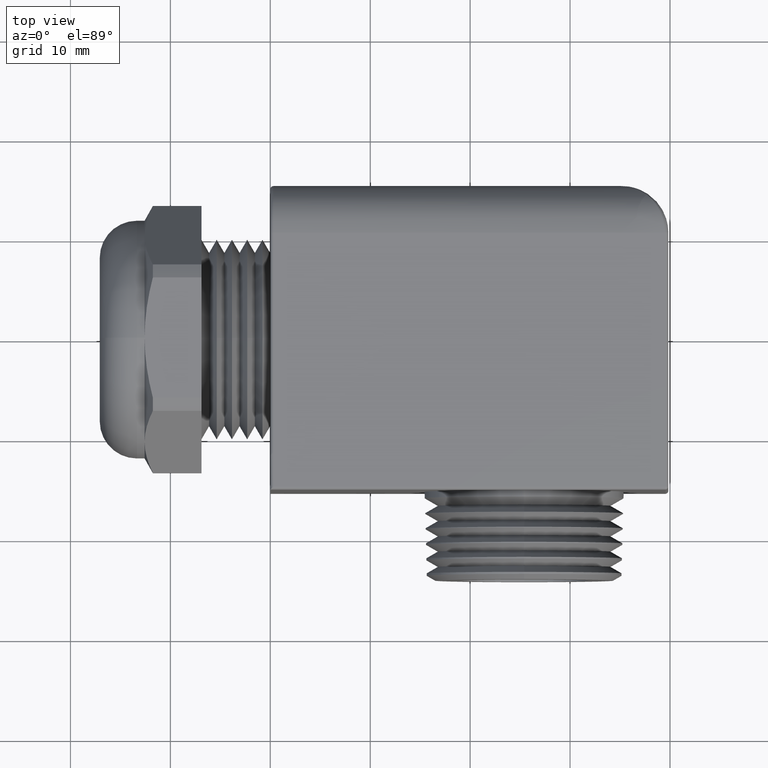
[diagram: clean part render]
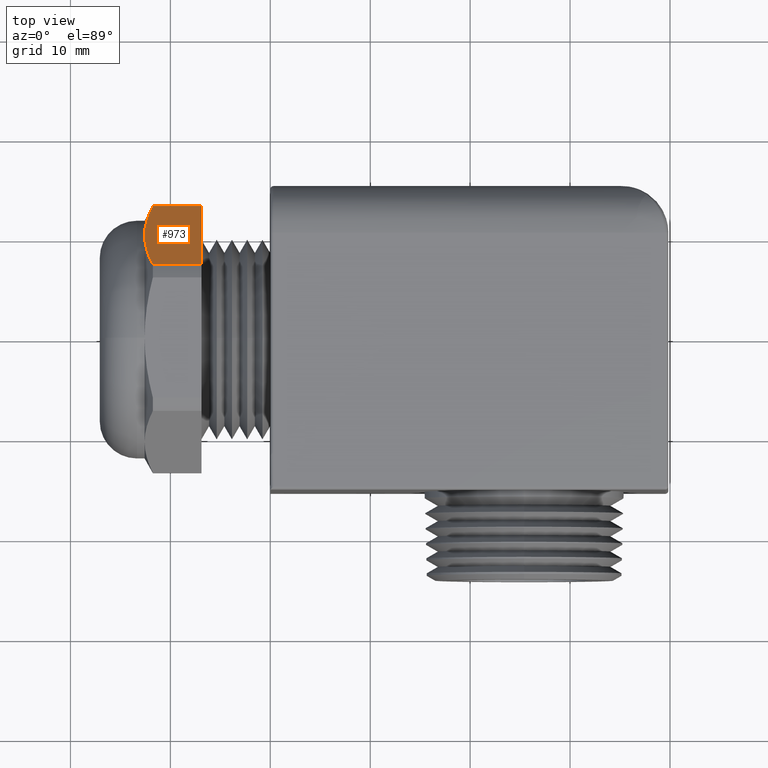
[diagram: same view with one face highlighted and labeled with its STEP entity id]
A machine part, top view. The second image highlights one B-rep face of the part: STEP entity #973.
In plain terms, the highlighted planar face has unit normal (0, -0.866, -0.5).
Its self-contained STEP definition (entity closure, byte-faithful):
#520 = VERTEX_POINT ( 'NONE', #2285 ) ;
#567 = VERTEX_POINT ( 'NONE', #2197 ) ;
#579 = EDGE_CURVE ( 'NONE', #796, #757, #2180, .T. ) ;
#757 = VERTEX_POINT ( 'NONE', #2643 ) ;
#796 = VERTEX_POINT ( 'NONE', #2702 ) ;
#803 = EDGE_CURVE ( 'NONE', #804, #567, #2696, .T. ) ;
#804 = VERTEX_POINT ( 'NONE', #2687 ) ;
#963 = EDGE_LOOP ( 'NONE', ( #974, #984, #986, #1145, #980 ) ) ;
#973 = ADVANCED_FACE ( 'NONE', ( #3145 ), #3144, .F. ) ;
#974 = ORIENTED_EDGE ( 'NONE', *, *, #983, .F. ) ;
#980 = ORIENTED_EDGE ( 'NONE', *, *, #989, .F. ) ;
#983 = EDGE_CURVE ( 'NONE', #757, #520, #3123, .T. ) ;
#984 = ORIENTED_EDGE ( 'NONE', *, *, #579, .F. ) ;
#986 = ORIENTED_EDGE ( 'NONE', *, *, #991, .T. ) ;
#989 = EDGE_CURVE ( 'NONE', #520, #567, #3077, .T. ) ;
#991 = EDGE_CURVE ( 'NONE', #796, #804, #3076, .T. ) ;
#1145 = ORIENTED_EDGE ( 'NONE', *, *, #803, .T. ) ;
#2177 = DIRECTION ( 'NONE',  ( -1.000000000000000000, 0.0000000000000000000, 0.0000000000000000000 ) ) ;
#2178 = VECTOR ( 'NONE', #2177, 39.37007874015748100 ) ;
#2179 = CARTESIAN_POINT ( 'NONE',  ( 1.232614984114216400, 0.2885024497772523700, 0.4402990988777105700 ) ) ;
#2180 = LINE ( 'NONE', #2179, #2178 ) ;
#2197 = CARTESIAN_POINT ( 'NONE',  ( -0.4625953395545473500, 0.5255614297801199900, 0.02970090112228945100 ) ) ;
#2285 = CARTESIAN_POINT ( 'NONE',  ( -0.4951578947368421300, 0.4070319397786862400, 0.2349999999999999900 ) ) ;
#2643 = CARTESIAN_POINT ( 'NONE',  ( -0.4625953395545473500, 0.2885024497772524200, 0.4402990988777105700 ) ) ;
#2687 = CARTESIAN_POINT ( 'NONE',  ( -0.2711578947368420400, 0.5255614297801199900, 0.02970090112228939900 ) ) ;
#2688 = DIRECTION ( 'NONE',  ( -1.000000000000000000, 0.0000000000000000000, 0.0000000000000000000 ) ) ;
#2689 = VECTOR ( 'NONE', #2688, 39.37007874015748100 ) ;
#2690 = CARTESIAN_POINT ( 'NONE',  ( 1.232614984114216400, 0.5255614297801199900, 0.02970090112228945100 ) ) ;
#2696 = LINE ( 'NONE', #2690, #2689 ) ;
#2702 = CARTESIAN_POINT ( 'NONE',  ( -0.2711578947368420400, 0.2885024497772523700, 0.4402990988777105700 ) ) ;
#3069 = CARTESIAN_POINT ( 'NONE',  ( -0.4893246889459829700, 0.4569476339447772800, 0.1485434816092610400 ) ) ;
#3070 = CARTESIAN_POINT ( 'NONE',  ( -0.4914973392523882500, 0.4470108610952940900, 0.1657544770478364400 ) ) ;
#3071 = CARTESIAN_POINT ( 'NONE',  ( -0.4944187900572141700, 0.4270206945807672500, 0.2003784611027595000 ) ) ;
#3072 = CARTESIAN_POINT ( 'NONE',  ( -0.4951578947368419600, 0.4169912288112727600, 0.2177500053882963100 ) ) ;
#3073 = CARTESIAN_POINT ( 'NONE',  ( -0.4951578947368421300, 0.4070319397786862400, 0.2349999999999999900 ) ) ;
#3074 = VECTOR ( 'NONE', #3109, 39.37007874015748900 ) ;
#3075 = CARTESIAN_POINT ( 'NONE',  ( -0.2711578947368419900, 0.5255614297801199900, 0.02970090112228944400 ) ) ;
#3076 = LINE ( 'NONE', #3075, #3074 ) ;
#3077 = B_SPLINE_CURVE_WITH_KNOTS ( 'NONE', 3,
 ( #3073, #3072, #3071, #3070, #3069, #3112, #3111, #3110 ),
 .UNSPECIFIED., .F., .F.,
 ( 4, 2, 2, 4 ),
 ( 0.006075914357643912700, 0.007584561484949386300, 0.009093208612254859900, 0.01211050286686580700 ),
 .UNSPECIFIED. ) ;
#3109 = DIRECTION ( 'NONE',  ( 0.0000000000000000000, 0.4999999999999998300, -0.8660254037844386000 ) ) ;
#3110 = CARTESIAN_POINT ( 'NONE',  ( -0.4625953395545473500, 0.5255614297801199900, 0.02970090112228945100 ) ) ;
#3111 = CARTESIAN_POINT ( 'NONE',  ( -0.4726850758228874900, 0.5061583836853466000, 0.06330796278003786300 ) ) ;
#3112 = CARTESIAN_POINT ( 'NONE',  ( -0.4808808538796333600, 0.4866002124151254100, 0.09718370912319479500 ) ) ;
#3115 = CARTESIAN_POINT ( 'NONE',  ( -0.4951578947368421300, 0.4070319397786862400, 0.2349999999999999900 ) ) ;
#3116 = CARTESIAN_POINT ( 'NONE',  ( -0.4951578947368421900, 0.3869777354411506600, 0.2697349008179796800 ) ) ;
#3117 = CARTESIAN_POINT ( 'NONE',  ( -0.4921546067548840900, 0.3670891542369594300, 0.3041829339540985100 ) ) ;
#3118 = CARTESIAN_POINT ( 'NONE',  ( -0.4809295128662801600, 0.3275997788457699100, 0.3725805384907988100 ) ) ;
#3119 = CARTESIAN_POINT ( 'NONE',  ( -0.4727329663616173200, 0.3079975916717095400, 0.4065325226157461800 ) ) ;
#3120 = CARTESIAN_POINT ( 'NONE',  ( -0.4625953395545473500, 0.2885024497772524200, 0.4402990988777105700 ) ) ;
#3123 = B_SPLINE_CURVE_WITH_KNOTS ( 'NONE', 3,
 ( #3120, #3119, #3118, #3117, #3116, #3115 ),
 .UNSPECIFIED., .F., .F.,
 ( 4, 2, 4 ),
 ( 2.361309699383629000E-007, 0.003038075244306925300, 0.006075914357643912700 ),
 .UNSPECIFIED. ) ;
#3140 = DIRECTION ( 'NONE',  ( 0.0000000000000000000, 0.4999999999999998300, -0.8660254037844386000 ) ) ;
#3141 = DIRECTION ( 'NONE',  ( 0.0000000000000000000, -0.8660254037844387100, -0.4999999999999998900 ) ) ;
#3142 = CARTESIAN_POINT ( 'NONE',  ( 1.232614984114216400, 0.5255614297801199900, 0.02970090112228944400 ) ) ;
#3143 = AXIS2_PLACEMENT_3D ( 'NONE', #3142, #3141, #3140 ) ;
#3144 = PLANE ( 'NONE',  #3143 ) ;
#3145 = FACE_OUTER_BOUND ( 'NONE', #963, .T. ) ;